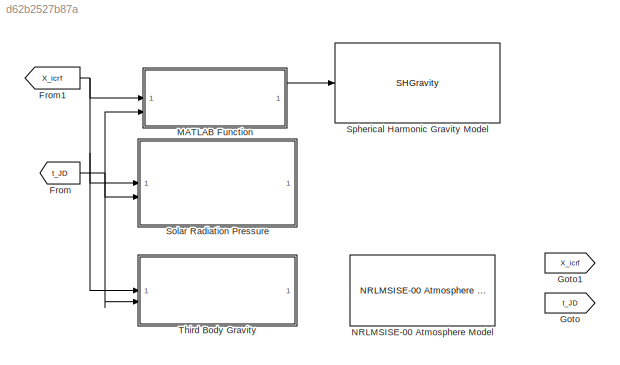
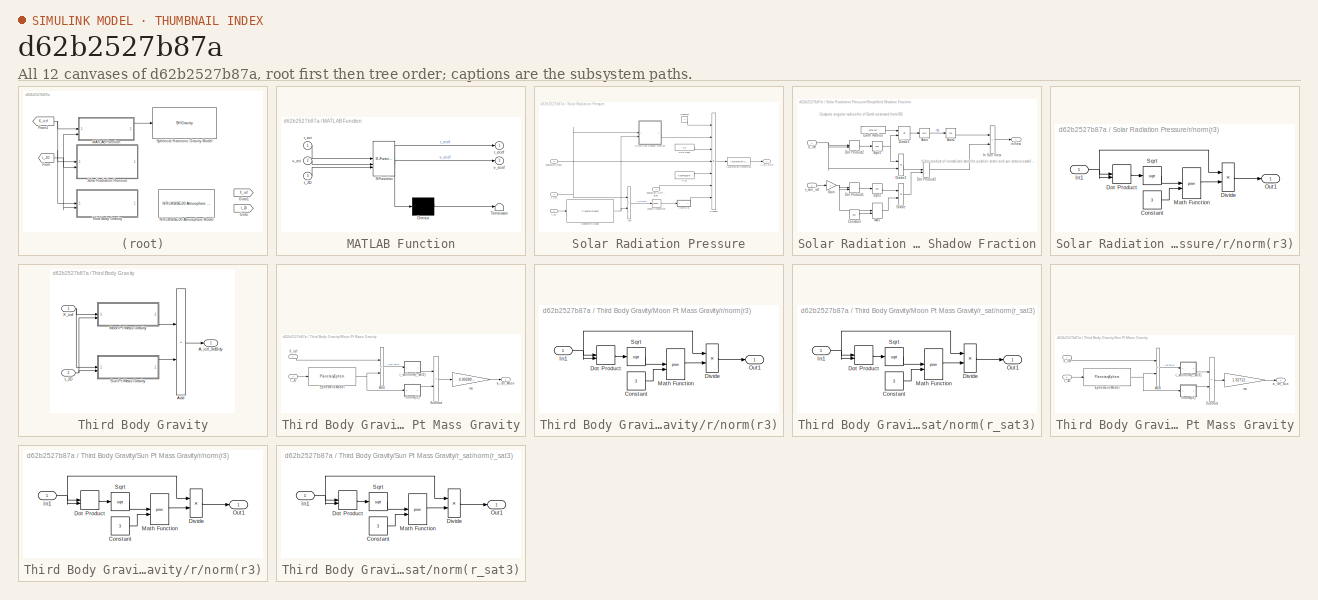
[diagram: thumbnail index - all 12 canvases of the model, root first then tree order]
MODEL slx_d62b2527b87a
KIND model
CONFIG AbsTol = auto
CONFIG EnableMultiTasking = off
CONFIG FixedStep = 0.01
CONFIG MaxStep = auto
CONFIG MinStep = auto
CONFIG RelTol = 1e-3
CONFIG SampleTimeConstraint = Unconstrained
CONFIG SolverName = FixedStepAuto
CONFIG StartTime = 0.0
CONFIG StopTime = 1000
WORKSPACE source: MATLAB code (in-file)
WORKSPACE code: function [x_pole,y_pole,UT1_UTC,LOD,dpsi,deps,dx_pole,dy_pole,TAI_UTC] = IERS(eop,Mjd_UTC,interp,astro_constants)
WORKSPACE code: if (nargin == 2)
WORKSPACE interp = 'n'
WORKSPACE code: end
WORKSPACE code: if (interp =='l')
WORKSPACE mjd = (floor(Mjd_UTC))
WORKSPACE i = find(mjd==eop(4,:),1,'first')
WORKSPACE preeop = eop(:,i)
WORKSPACE nexteop = eop(:,i+1)
WORKSPACE mfme = 1440*(Mjd_UTC-floor(Mjd_UTC))
WORKSPACE fixf = mfme/1440
WORKSPACE x_pole = preeop(5)+(nexteop(5)-preeop(5))*fixf
WORKSPACE y_pole = preeop(6)+(nexteop(6)-preeop(6))*fixf
WORKSPACE UT1_UTC = preeop(7)+(nexteop(7)-preeop(7))*fixf
WORKSPACE LOD = preeop(8)+(nexteop(8)-preeop(8))*fixf
WORKSPACE dpsi = preeop(9)+(nexteop(9)-preeop(9))*fixf
WORKSPACE deps = preeop(10)+(nexteop(10)-preeop(10))*fixf
WORKSPACE dx_pole = preeop(11)+(nexteop(11)-preeop(11))*fixf
WORKSPACE dy_pole = preeop(12)+(nexteop(12)-preeop(12))*fixf
WORKSPACE TAI_UTC = preeop(13)
WORKSPACE x_pole = x_pole/astro_constants.Arcs
WORKSPACE y_pole = y_pole/astro_constants.Arcs
WORKSPACE dpsi = dpsi/astro_constants.Arcs
WORKSPACE deps = deps/astro_constants.Arcs
WORKSPACE dx_pole = dx_pole/astro_constants.Arcs
WORKSPACE dy_pole = dy_pole/astro_constants.Arcs
WORKSPACE code: elseif (interp =='n')
WORKSPACE mjd = (floor(Mjd_UTC))
WORKSPACE i = find(mjd==eop(4,:),1,'first')
WORKSPACE eop = eop(:,i)
WORKSPACE x_pole = eop(5)/astro_constants.Arcs
WORKSPACE y_pole = eop(6)/astro_constants.Arcs
WORKSPACE UT1_UTC = eop(7)
WORKSPACE LOD = eop(8)
WORKSPACE dpsi = eop(9)/astro_constants.Arcs
WORKSPACE deps = eop(10)/astro_constants.Arcs
WORKSPACE dx_pole = eop(11)/astro_constants.Arcs
WORKSPACE dy_pole = eop(12)/astro_constants.Arcs
WORKSPACE TAI_UTC = eop(13)
WORKSPACE code: end
BLOCK [From] From
  Commented = on
  GotoTag = t_JD
BLOCK [From] From1
  Commented = on
  GotoTag = X_icrf
BLOCK [Goto] Goto
  Commented = on
  GotoTag = t_JD
BLOCK [Goto] Goto1
  Commented = on
  GotoTag = X_icrf
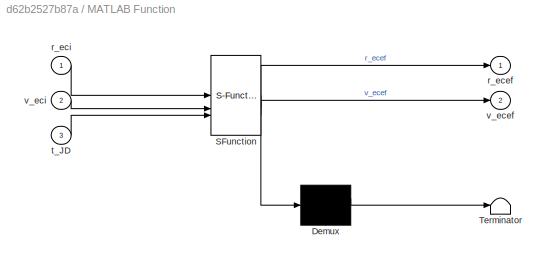
BLOCK [SubSystem] MATLAB Function
  Commented = on
  ErrorFcn = Stateflow.Translate.translate
  LibrarySourceBlock = simulink/User-Defined\nFunctions/MATLAB Function
  PermitHierarchicalResolution = ExplicitOnly
  SFBlockType = MATLAB Function
  TreatAsAtomicUnit = on
BLOCK [Demux] MATLAB Function/ Demux 
  Outputs = 1
BLOCK [S-Function] MATLAB Function/ SFunction 
  EnableBusSupport = on
  FunctionName = sf_sfun
  Parameters = astro_constants,eopdata
  PortCounts = [3 3]
  SFcnIsStateOwnerBlock = off
  SFunctionDeploymentMode = off
  Tag = Stateflow S-Function 2
BLOCK [Terminator] MATLAB Function/ Terminator 
BLOCK [Outport] MATLAB Function/r_ecef
BLOCK [Inport] MATLAB Function/r_eci
BLOCK [Inport] MATLAB Function/t_JD
  Port = 3
BLOCK [Outport] MATLAB Function/v_ecef
  Port = 2
BLOCK [Inport] MATLAB Function/v_eci
  Port = 2
BLOCK [Reference] NRLMSISE-00 Atmosphere Model  REF=aerolibatmos2/NRLMSISE-00
Atmosphere Model
  Commented = on
  SourceBlock = aerolibatmos2/NRLMSISE-00\nAtmosphere Model
  SourceType = NRLMSISE-00 Model
BLOCK [SubSystem] Solar Radiation Pressure
  Commented = on
BLOCK [Outport] Solar Radiation Pressure/A_icrf_SRP
BLOCK [Reference] Solar Radiation Pressure/Acceleration Conversion  REF=aerolibconvert2/Acceleration Conversion
  SourceBlock = aerolibconvert2/Acceleration Conversion
  SourceType = Acceleration Conversion
BLOCK [Sum] Solar Radiation Pressure/Add
  IconShape = rectangular
  Inputs = -+
BLOCK [Constant] Solar Radiation Pressure/Constant
  Value = -1
BLOCK [PlanetaryEphem] Solar Radiation Pressure/Ephemeris Model
  AttributesFormatString = %<nCenter> to %<nTarget>\nJPL Model: %<de>
  outputVelocity = off
  target = Sun
BLOCK [Reference] Solar Radiation Pressure/Length Conversion  REF=aerolibconvert2/Length Conversion
  SourceBlock = aerolibconvert2/Length Conversion
  SourceType = Length Conversion
BLOCK [Constant] Solar Radiation Pressure/P_sr
  Value = 4.5344321e-6
BLOCK [Product] Solar Radiation Pressure/Product
  Inputs = *****/*
BLOCK [Constant] Solar Radiation Pressure/SRPCoeff
  Value = 1.8
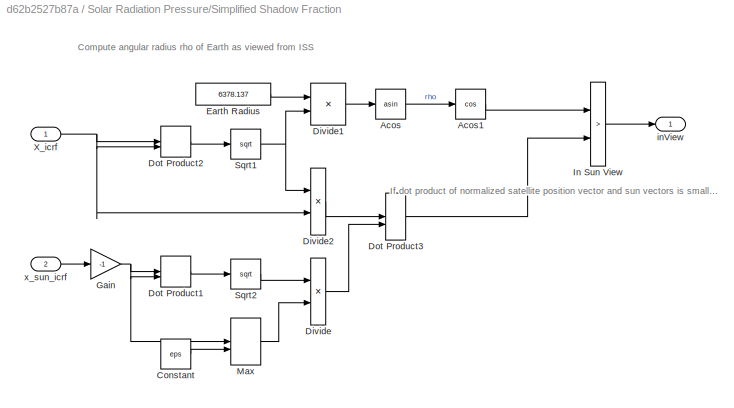
BLOCK [SubSystem] Solar Radiation Pressure/Simplified Shadow Fraction
BLOCK [Trigonometry] Solar Radiation Pressure/Simplified Shadow Fraction/Acos
  Operator = asin
BLOCK [Trigonometry] Solar Radiation Pressure/Simplified Shadow Fraction/Acos1
  Operator = cos
BLOCK [Constant] Solar Radiation Pressure/Simplified Shadow Fraction/Constant
  Value = eps
BLOCK [Product] Solar Radiation Pressure/Simplified Shadow Fraction/Divide
  Inputs = */
BLOCK [Product] Solar Radiation Pressure/Simplified Shadow Fraction/Divide1
  Inputs = */
BLOCK [Product] Solar Radiation Pressure/Simplified Shadow Fraction/Divide2
  Inputs = */
BLOCK [DotProduct] Solar Radiation Pressure/Simplified Shadow Fraction/Dot Product1
  OutDataTypeStr = Inherit: Inherit via internal rule
BLOCK [DotProduct] Solar Radiation Pressure/Simplified Shadow Fraction/Dot Product2
  OutDataTypeStr = Inherit: Inherit via internal rule
BLOCK [DotProduct] Solar Radiation Pressure/Simplified Shadow Fraction/Dot Product3
  OutDataTypeStr = Inherit: Inherit via internal rule
BLOCK [Constant] Solar Radiation Pressure/Simplified Shadow Fraction/Earth Radius
  SampleTime = 0
  Value = 6378.137
  VectorParams1D = off
BLOCK [Gain] Solar Radiation Pressure/Simplified Shadow Fraction/Gain
  Gain = -1
BLOCK [RelationalOperator] Solar Radiation Pressure/Simplified Shadow Fraction/In Sun View
  InputSameDT = off
  Operator = >
  OutDataTypeStr = boolean
  RndMeth = Simplest
  ZeroCross = off
BLOCK [MinMax] Solar Radiation Pressure/Simplified Shadow Fraction/Max
  Function = max
  Inputs = 2
BLOCK [Sqrt] Solar Radiation Pressure/Simplified Shadow Fraction/Sqrt1
BLOCK [Sqrt] Solar Radiation Pressure/Simplified Shadow Fraction/Sqrt2
BLOCK [Inport] Solar Radiation Pressure/Simplified Shadow Fraction/X_icrf
BLOCK [Outport] Solar Radiation Pressure/Simplified Shadow Fraction/inView
  SampleTime = 0
BLOCK [Inport] Solar Radiation Pressure/Simplified Shadow Fraction/x_sun_icrf
  Port = 2
  SampleTime = 0
BLOCK [Inport] Solar Radiation Pressure/X_icrf
BLOCK [SubSystem] Solar Radiation Pressure/r//norm(r3)
BLOCK [Constant] Solar Radiation Pressure/r//norm(r3)/Constant
  Value = 3
BLOCK [Product] Solar Radiation Pressure/r//norm(r3)/Divide
  Inputs = */
BLOCK [DotProduct] Solar Radiation Pressure/r//norm(r3)/Dot Product
  OutDataTypeStr = Inherit: Inherit via internal rule
BLOCK [Inport] Solar Radiation Pressure/r//norm(r3)/In1
BLOCK [Math] Solar Radiation Pressure/r//norm(r3)/Math Function
  Operator = pow
BLOCK [Outport] Solar Radiation Pressure/r//norm(r3)/Out1
BLOCK [Sqrt] Solar Radiation Pressure/r//norm(r3)/Sqrt
BLOCK [Inport] Solar Radiation Pressure/spacecraft_SRP_area
  Port = 4
BLOCK [Inport] Solar Radiation Pressure/spacecraft_mass
  Port = 3
BLOCK [Inport] Solar Radiation Pressure/t_JD
  Port = 2
BLOCK [SHGravity] Spherical Harmonic Gravity Model
  Commented = on
BLOCK [SubSystem] Third Body Gravity
  Commented = on
BLOCK [Outport] Third Body Gravity/A_icrf_3rdBdy
BLOCK [Sum] Third Body Gravity/Add
  IconShape = rectangular
  Inputs = 2
BLOCK [SubSystem] Third Body Gravity/Moon Pt Mass Gravity
BLOCK [Sum] Third Body Gravity/Moon Pt Mass Gravity/Add
  IconShape = rectangular
  Inputs = -+
BLOCK [PlanetaryEphem] Third Body Gravity/Moon Pt Mass Gravity/Ephemeris Model
  AttributesFormatString = %<nCenter> to %<nTarget>\nJPL Model: %<de>
  outputVelocity = off
BLOCK [Sum] Third Body Gravity/Moon Pt Mass Gravity/Subtract
  IconShape = rectangular
  Inputs = +-
BLOCK [Inport] Third Body Gravity/Moon Pt Mass Gravity/X_icrf
BLOCK [Outport] Third Body Gravity/Moon Pt Mass Gravity/a_icrf_Moon
BLOCK [Gain] Third Body Gravity/Moon Pt Mass Gravity/mu
  Gain = 4.902801076e3
BLOCK [SubSystem] Third Body Gravity/Moon Pt Mass Gravity/r//norm(r3)
BLOCK [Constant] Third Body Gravity/Moon Pt Mass Gravity/r//norm(r3)/Constant
  Value = 3
BLOCK [Product] Third Body Gravity/Moon Pt Mass Gravity/r//norm(r3)/Divide
  Inputs = */
BLOCK [DotProduct] Third Body Gravity/Moon Pt Mass Gravity/r//norm(r3)/Dot Product
  OutDataTypeStr = Inherit: Inherit via internal rule
BLOCK [Inport] Third Body Gravity/Moon Pt Mass Gravity/r//norm(r3)/In1
BLOCK [Math] Third Body Gravity/Moon Pt Mass Gravity/r//norm(r3)/Math Function
  Operator = pow
BLOCK [Outport] Third Body Gravity/Moon Pt Mass Gravity/r//norm(r3)/Out1
BLOCK [Sqrt] Third Body Gravity/Moon Pt Mass Gravity/r//norm(r3)/Sqrt
BLOCK [SubSystem] Third Body Gravity/Moon Pt Mass Gravity/r_sat//norm(r_sat3)
BLOCK [Constant] Third Body Gravity/Moon Pt Mass Gravity/r_sat//norm(r_sat3)/Constant
  Value = 3
BLOCK [Product] Third Body Gravity/Moon Pt Mass Gravity/r_sat//norm(r_sat3)/Divide
  Inputs = */
BLOCK [DotProduct] Third Body Gravity/Moon Pt Mass Gravity/r_sat//norm(r_sat3)/Dot Product
  OutDataTypeStr = Inherit: Inherit via internal rule
BLOCK [Inport] Third Body Gravity/Moon Pt Mass Gravity/r_sat//norm(r_sat3)/In1
BLOCK [Math] Third Body Gravity/Moon Pt Mass Gravity/r_sat//norm(r_sat3)/Math Function
  Operator = pow
BLOCK [Outport] Third Body Gravity/Moon Pt Mass Gravity/r_sat//norm(r_sat3)/Out1
BLOCK [Sqrt] Third Body Gravity/Moon Pt Mass Gravity/r_sat//norm(r_sat3)/Sqrt
BLOCK [Inport] Third Body Gravity/Moon Pt Mass Gravity/t_JD
  Port = 2
BLOCK [SubSystem] Third Body Gravity/Sun Pt Mass Gravity
BLOCK [Sum] Third Body Gravity/Sun Pt Mass Gravity/Add
  IconShape = rectangular
  Inputs = -+
BLOCK [PlanetaryEphem] Third Body Gravity/Sun Pt Mass Gravity/Ephemeris Model
  AttributesFormatString = %<nCenter> to %<nTarget>\nJPL Model: %<de>
  outputVelocity = off
  target = Sun
BLOCK [Sum] Third Body Gravity/Sun Pt Mass Gravity/Subtract
  IconShape = rectangular
  Inputs = +-
BLOCK [Inport] Third Body Gravity/Sun Pt Mass Gravity/X_icrf
BLOCK [Outport] Third Body Gravity/Sun Pt Mass Gravity/a_icrf_Sun
BLOCK [Gain] Third Body Gravity/Sun Pt Mass Gravity/mu
  Gain = 1.32712440018e11
BLOCK [SubSystem] Third Body Gravity/Sun Pt Mass Gravity/r//norm(r3)
BLOCK [Constant] Third Body Gravity/Sun Pt Mass Gravity/r//norm(r3)/Constant
  Value = 3
BLOCK [Product] Third Body Gravity/Sun Pt Mass Gravity/r//norm(r3)/Divide
  Inputs = */
BLOCK [DotProduct] Third Body Gravity/Sun Pt Mass Gravity/r//norm(r3)/Dot Product
  OutDataTypeStr = Inherit: Inherit via internal rule
BLOCK [Inport] Third Body Gravity/Sun Pt Mass Gravity/r//norm(r3)/In1
BLOCK [Math] Third Body Gravity/Sun Pt Mass Gravity/r//norm(r3)/Math Function
  Operator = pow
BLOCK [Outport] Third Body Gravity/Sun Pt Mass Gravity/r//norm(r3)/Out1
BLOCK [Sqrt] Third Body Gravity/Sun Pt Mass Gravity/r//norm(r3)/Sqrt
BLOCK [SubSystem] Third Body Gravity/Sun Pt Mass Gravity/r_sat//norm(r_sat3)
BLOCK [Constant] Third Body Gravity/Sun Pt Mass Gravity/r_sat//norm(r_sat3)/Constant
  Value = 3
BLOCK [Product] Third Body Gravity/Sun Pt Mass Gravity/r_sat//norm(r_sat3)/Divide
  Inputs = */
BLOCK [DotProduct] Third Body Gravity/Sun Pt Mass Gravity/r_sat//norm(r_sat3)/Dot Product
  OutDataTypeStr = Inherit: Inherit via internal rule
BLOCK [Inport] Third Body Gravity/Sun Pt Mass Gravity/r_sat//norm(r_sat3)/In1
BLOCK [Math] Third Body Gravity/Sun Pt Mass Gravity/r_sat//norm(r_sat3)/Math Function
  Operator = pow
BLOCK [Outport] Third Body Gravity/Sun Pt Mass Gravity/r_sat//norm(r_sat3)/Out1
BLOCK [Sqrt] Third Body Gravity/Sun Pt Mass Gravity/r_sat//norm(r_sat3)/Sqrt
BLOCK [Inport] Third Body Gravity/Sun Pt Mass Gravity/t_JD
  Port = 2
BLOCK [Inport] Third Body Gravity/X_icrf
BLOCK [Inport] Third Body Gravity/t_JD
  Port = 2
ANNOTATION Solar Radiation Pressure/Simplified Shadow Fraction: Compute angular radius rho of Earth as viewed from ISS
ANNOTATION Solar Radiation Pressure/Simplified Shadow Fraction: If dot product of normalized satellite position vector and sun vectors is smaller than cos rho then Earth is not blocking sun.
NET From1:1 -> MATLAB Function:1, Solar Radiation Pressure:1, Third Body Gravity:1
NET From:1 -> MATLAB Function:3, Solar Radiation Pressure:2, Third Body Gravity:2
LINE MATLAB Function:1 -> Spherical Harmonic Gravity Model:1
LINE Solar Radiation Pressure/Acceleration Conversion:1 -> Solar Radiation Pressure/A_icrf_SRP:1
LINE Solar Radiation Pressure/Add:1 -> Solar Radiation Pressure/Length Conversion:1
LINE Solar Radiation Pressure/Constant:1 -> Solar Radiation Pressure/Product:1
NET Solar Radiation Pressure/Ephemeris Model:1 -> Solar Radiation Pressure/Add:2, Solar Radiation Pressure/Simplified Shadow Fraction:2
LINE Solar Radiation Pressure/Length Conversion:1 -> Solar Radiation Pressure/r//norm(r3):1
LINE Solar Radiation Pressure/P_sr:1 -> Solar Radiation Pressure/Product:5
LINE Solar Radiation Pressure/Product:1 -> Solar Radiation Pressure/Acceleration Conversion:1
LINE Solar Radiation Pressure/SRPCoeff:1 -> Solar Radiation Pressure/Product:3
LINE Solar Radiation Pressure/Simplified Shadow Fraction/Acos1:1 -> Solar Radiation Pressure/Simplified Shadow Fraction/In Sun View:1
LINE Solar Radiation Pressure/Simplified Shadow Fraction/Acos:1 -> Solar Radiation Pressure/Simplified Shadow Fraction/Acos1:1
LINE Solar Radiation Pressure/Simplified Shadow Fraction/Constant:1 -> Solar Radiation Pressure/Simplified Shadow Fraction/Max:2
LINE Solar Radiation Pressure/Simplified Shadow Fraction/Divide1:1 -> Solar Radiation Pressure/Simplified Shadow Fraction/Acos:1
LINE Solar Radiation Pressure/Simplified Shadow Fraction/Divide2:1 -> Solar Radiation Pressure/Simplified Shadow Fraction/Dot Product3:1
LINE Solar Radiation Pressure/Simplified Shadow Fraction/Divide:1 -> Solar Radiation Pressure/Simplified Shadow Fraction/Dot Product3:2
LINE Solar Radiation Pressure/Simplified Shadow Fraction/Dot Product1:1 -> Solar Radiation Pressure/Simplified Shadow Fraction/Sqrt2:1
LINE Solar Radiation Pressure/Simplified Shadow Fraction/Dot Product2:1 -> Solar Radiation Pressure/Simplified Shadow Fraction/Sqrt1:1
LINE Solar Radiation Pressure/Simplified Shadow Fraction/Dot Product3:1 -> Solar Radiation Pressure/Simplified Shadow Fraction/In Sun View:2
LINE Solar Radiation Pressure/Simplified Shadow Fraction/Earth Radius:1 -> Solar Radiation Pressure/Simplified Shadow Fraction/Divide1:1
NET Solar Radiation Pressure/Simplified Shadow Fraction/Gain:1 -> Solar Radiation Pressure/Simplified Shadow Fraction/Dot Product1:1, Solar Radiation Pressure/Simplified Shadow Fraction/Dot Product1:2, Solar Radiation Pressure/Simplified Shadow Fraction/Max:1
LINE Solar Radiation Pressure/Simplified Shadow Fraction/In Sun View:1 -> Solar Radiation Pressure/Simplified Shadow Fraction/inView:1
LINE Solar Radiation Pressure/Simplified Shadow Fraction/Max:1 -> Solar Radiation Pressure/Simplified Shadow Fraction/Divide:2
NET Solar Radiation Pressure/Simplified Shadow Fraction/Sqrt1:1 -> Solar Radiation Pressure/Simplified Shadow Fraction/Divide1:2, Solar Radiation Pressure/Simplified Shadow Fraction/Divide2:1
LINE Solar Radiation Pressure/Simplified Shadow Fraction/Sqrt2:1 -> Solar Radiation Pressure/Simplified Shadow Fraction/Divide:1
NET Solar Radiation Pressure/Simplified Shadow Fraction/X_icrf:1 -> Solar Radiation Pressure/Simplified Shadow Fraction/Divide2:2, Solar Radiation Pressure/Simplified Shadow Fraction/Dot Product2:1, Solar Radiation Pressure/Simplified Shadow Fraction/Dot Product2:2
LINE Solar Radiation Pressure/Simplified Shadow Fraction/x_sun_icrf:1 -> Solar Radiation Pressure/Simplified Shadow Fraction/Gain:1
LINE Solar Radiation Pressure/Simplified Shadow Fraction:1 -> Solar Radiation Pressure/Product:2
NET Solar Radiation Pressure/X_icrf:1 -> Solar Radiation Pressure/Add:1, Solar Radiation Pressure/Simplified Shadow Fraction:1
LINE Solar Radiation Pressure/r//norm(r3)/Constant:1 -> Solar Radiation Pressure/r//norm(r3)/Math Function:2
LINE Solar Radiation Pressure/r//norm(r3)/Divide:1 -> Solar Radiation Pressure/r//norm(r3)/Out1:1
LINE Solar Radiation Pressure/r//norm(r3)/Dot Product:1 -> Solar Radiation Pressure/r//norm(r3)/Sqrt:1
NET Solar Radiation Pressure/r//norm(r3)/In1:1 -> Solar Radiation Pressure/r//norm(r3)/Divide:1, Solar Radiation Pressure/r//norm(r3)/Dot Product:1, Solar Radiation Pressure/r//norm(r3)/Dot Product:2
LINE Solar Radiation Pressure/r//norm(r3)/Math Function:1 -> Solar Radiation Pressure/r//norm(r3)/Divide:2
LINE Solar Radiation Pressure/r//norm(r3)/Sqrt:1 -> Solar Radiation Pressure/r//norm(r3)/Math Function:1
LINE Solar Radiation Pressure/r//norm(r3):1 -> Solar Radiation Pressure/Product:7
LINE Solar Radiation Pressure/spacecraft_SRP_area:1 -> Solar Radiation Pressure/Product:6
LINE Solar Radiation Pressure/spacecraft_mass:1 -> Solar Radiation Pressure/Product:4
LINE Solar Radiation Pressure/t_JD:1 -> Solar Radiation Pressure/Ephemeris Model:1
LINE Third Body Gravity/Add:1 -> Third Body Gravity/A_icrf_3rdBdy:1
LINE Third Body Gravity/Moon Pt Mass Gravity/Add:1 -> Third Body Gravity/Moon Pt Mass Gravity/r_sat//norm(r_sat3):1
NET Third Body Gravity/Moon Pt Mass Gravity/Ephemeris Model:1 -> Third Body Gravity/Moon Pt Mass Gravity/Add:2, Third Body Gravity/Moon Pt Mass Gravity/r//norm(r3):1
LINE Third Body Gravity/Moon Pt Mass Gravity/Subtract:1 -> Third Body Gravity/Moon Pt Mass Gravity/mu:1
LINE Third Body Gravity/Moon Pt Mass Gravity/X_icrf:1 -> Third Body Gravity/Moon Pt Mass Gravity/Add:1
LINE Third Body Gravity/Moon Pt Mass Gravity/mu:1 -> Third Body Gravity/Moon Pt Mass Gravity/a_icrf_Moon:1
LINE Third Body Gravity/Moon Pt Mass Gravity/r//norm(r3)/Constant:1 -> Third Body Gravity/Moon Pt Mass Gravity/r//norm(r3)/Math Function:2
LINE Third Body Gravity/Moon Pt Mass Gravity/r//norm(r3)/Divide:1 -> Third Body Gravity/Moon Pt Mass Gravity/r//norm(r3)/Out1:1
LINE Third Body Gravity/Moon Pt Mass Gravity/r//norm(r3)/Dot Product:1 -> Third Body Gravity/Moon Pt Mass Gravity/r//norm(r3)/Sqrt:1
NET Third Body Gravity/Moon Pt Mass Gravity/r//norm(r3)/In1:1 -> Third Body Gravity/Moon Pt Mass Gravity/r//norm(r3)/Divide:1, Third Body Gravity/Moon Pt Mass Gravity/r//norm(r3)/Dot Product:1, Third Body Gravity/Moon Pt Mass Gravity/r//norm(r3)/Dot Product:2
LINE Third Body Gravity/Moon Pt Mass Gravity/r//norm(r3)/Math Function:1 -> Third Body Gravity/Moon Pt Mass Gravity/r//norm(r3)/Divide:2
LINE Third Body Gravity/Moon Pt Mass Gravity/r//norm(r3)/Sqrt:1 -> Third Body Gravity/Moon Pt Mass Gravity/r//norm(r3)/Math Function:1
LINE Third Body Gravity/Moon Pt Mass Gravity/r//norm(r3):1 -> Third Body Gravity/Moon Pt Mass Gravity/Subtract:2
LINE Third Body Gravity/Moon Pt Mass Gravity/r_sat//norm(r_sat3)/Constant:1 -> Third Body Gravity/Moon Pt Mass Gravity/r_sat//norm(r_sat3)/Math Function:2
LINE Third Body Gravity/Moon Pt Mass Gravity/r_sat//norm(r_sat3)/Divide:1 -> Third Body Gravity/Moon Pt Mass Gravity/r_sat//norm(r_sat3)/Out1:1
LINE Third Body Gravity/Moon Pt Mass Gravity/r_sat//norm(r_sat3)/Dot Product:1 -> Third Body Gravity/Moon Pt Mass Gravity/r_sat//norm(r_sat3)/Sqrt:1
NET Third Body Gravity/Moon Pt Mass Gravity/r_sat//norm(r_sat3)/In1:1 -> Third Body Gravity/Moon Pt Mass Gravity/r_sat//norm(r_sat3)/Divide:1, Third Body Gravity/Moon Pt Mass Gravity/r_sat//norm(r_sat3)/Dot Product:1, Third Body Gravity/Moon Pt Mass Gravity/r_sat//norm(r_sat3)/Dot Product:2
LINE Third Body Gravity/Moon Pt Mass Gravity/r_sat//norm(r_sat3)/Math Function:1 -> Third Body Gravity/Moon Pt Mass Gravity/r_sat//norm(r_sat3)/Divide:2
LINE Third Body Gravity/Moon Pt Mass Gravity/r_sat//norm(r_sat3)/Sqrt:1 -> Third Body Gravity/Moon Pt Mass Gravity/r_sat//norm(r_sat3)/Math Function:1
LINE Third Body Gravity/Moon Pt Mass Gravity/r_sat//norm(r_sat3):1 -> Third Body Gravity/Moon Pt Mass Gravity/Subtract:1
LINE Third Body Gravity/Moon Pt Mass Gravity/t_JD:1 -> Third Body Gravity/Moon Pt Mass Gravity/Ephemeris Model:1
LINE Third Body Gravity/Moon Pt Mass Gravity:1 -> Third Body Gravity/Add:1
LINE Third Body Gravity/Sun Pt Mass Gravity/Add:1 -> Third Body Gravity/Sun Pt Mass Gravity/r_sat//norm(r_sat3):1
NET Third Body Gravity/Sun Pt Mass Gravity/Ephemeris Model:1 -> Third Body Gravity/Sun Pt Mass Gravity/Add:2, Third Body Gravity/Sun Pt Mass Gravity/r//norm(r3):1
LINE Third Body Gravity/Sun Pt Mass Gravity/Subtract:1 -> Third Body Gravity/Sun Pt Mass Gravity/mu:1
LINE Third Body Gravity/Sun Pt Mass Gravity/X_icrf:1 -> Third Body Gravity/Sun Pt Mass Gravity/Add:1
LINE Third Body Gravity/Sun Pt Mass Gravity/mu:1 -> Third Body Gravity/Sun Pt Mass Gravity/a_icrf_Sun:1
LINE Third Body Gravity/Sun Pt Mass Gravity/r//norm(r3)/Constant:1 -> Third Body Gravity/Sun Pt Mass Gravity/r//norm(r3)/Math Function:2
LINE Third Body Gravity/Sun Pt Mass Gravity/r//norm(r3)/Divide:1 -> Third Body Gravity/Sun Pt Mass Gravity/r//norm(r3)/Out1:1
LINE Third Body Gravity/Sun Pt Mass Gravity/r//norm(r3)/Dot Product:1 -> Third Body Gravity/Sun Pt Mass Gravity/r//norm(r3)/Sqrt:1
NET Third Body Gravity/Sun Pt Mass Gravity/r//norm(r3)/In1:1 -> Third Body Gravity/Sun Pt Mass Gravity/r//norm(r3)/Divide:1, Third Body Gravity/Sun Pt Mass Gravity/r//norm(r3)/Dot Product:1, Third Body Gravity/Sun Pt Mass Gravity/r//norm(r3)/Dot Product:2
LINE Third Body Gravity/Sun Pt Mass Gravity/r//norm(r3)/Math Function:1 -> Third Body Gravity/Sun Pt Mass Gravity/r//norm(r3)/Divide:2
LINE Third Body Gravity/Sun Pt Mass Gravity/r//norm(r3)/Sqrt:1 -> Third Body Gravity/Sun Pt Mass Gravity/r//norm(r3)/Math Function:1
LINE Third Body Gravity/Sun Pt Mass Gravity/r//norm(r3):1 -> Third Body Gravity/Sun Pt Mass Gravity/Subtract:2
LINE Third Body Gravity/Sun Pt Mass Gravity/r_sat//norm(r_sat3)/Constant:1 -> Third Body Gravity/Sun Pt Mass Gravity/r_sat//norm(r_sat3)/Math Function:2
LINE Third Body Gravity/Sun Pt Mass Gravity/r_sat//norm(r_sat3)/Divide:1 -> Third Body Gravity/Sun Pt Mass Gravity/r_sat//norm(r_sat3)/Out1:1
LINE Third Body Gravity/Sun Pt Mass Gravity/r_sat//norm(r_sat3)/Dot Product:1 -> Third Body Gravity/Sun Pt Mass Gravity/r_sat//norm(r_sat3)/Sqrt:1
NET Third Body Gravity/Sun Pt Mass Gravity/r_sat//norm(r_sat3)/In1:1 -> Third Body Gravity/Sun Pt Mass Gravity/r_sat//norm(r_sat3)/Divide:1, Third Body Gravity/Sun Pt Mass Gravity/r_sat//norm(r_sat3)/Dot Product:1, Third Body Gravity/Sun Pt Mass Gravity/r_sat//norm(r_sat3)/Dot Product:2
LINE Third Body Gravity/Sun Pt Mass Gravity/r_sat//norm(r_sat3)/Math Function:1 -> Third Body Gravity/Sun Pt Mass Gravity/r_sat//norm(r_sat3)/Divide:2
LINE Third Body Gravity/Sun Pt Mass Gravity/r_sat//norm(r_sat3)/Sqrt:1 -> Third Body Gravity/Sun Pt Mass Gravity/r_sat//norm(r_sat3)/Math Function:1
LINE Third Body Gravity/Sun Pt Mass Gravity/r_sat//norm(r_sat3):1 -> Third Body Gravity/Sun Pt Mass Gravity/Subtract:1
LINE Third Body Gravity/Sun Pt Mass Gravity/t_JD:1 -> Third Body Gravity/Sun Pt Mass Gravity/Ephemeris Model:1
LINE Third Body Gravity/Sun Pt Mass Gravity:1 -> Third Body Gravity/Add:2
NET Third Body Gravity/X_icrf:1 -> Third Body Gravity/Moon Pt Mass Gravity:1, Third Body Gravity/Sun Pt Mass Gravity:1
NET Third Body Gravity/t_JD:1 -> Third Body Gravity/Moon Pt Mass Gravity:2, Third Body Gravity/Sun Pt Mass Gravity:2
note: NET lines group one-source signal fan-out (src -> all destinations, sorted); 1:1 wires keep LINE
CHART MATLAB Function states=1 transitions=1
  STATE_LABEL 'eML_blk_kernel()'
  STATE_LABEL 'SCRIPT:\nfunction [r_ecef, v_ecef] = eci2ecef_block(r_eci, v_eci, t_JD, eopdata, astro_constants)\n\nMJD_UTC = t_JD - 2400000.5;\n[x_pole, y_pole, UT1_UTC, LOD, TAI_UTC] = IERS(eopdata, MJD_UTC, astro_constants);\nTT_UTC = 32.184 + TAI_UTC;\nMJD_UT1 = MJD_UTC + UT1_UTC / 86400;\nMJD_TT = MJD_UTC + TT_UTC / 86400;\n\n% Interval between fundamental date J2000.0 and given date (JC).\nt = ((astro_constants.DJM0...<+808ch>'
CHART  states=0 transitions=0
